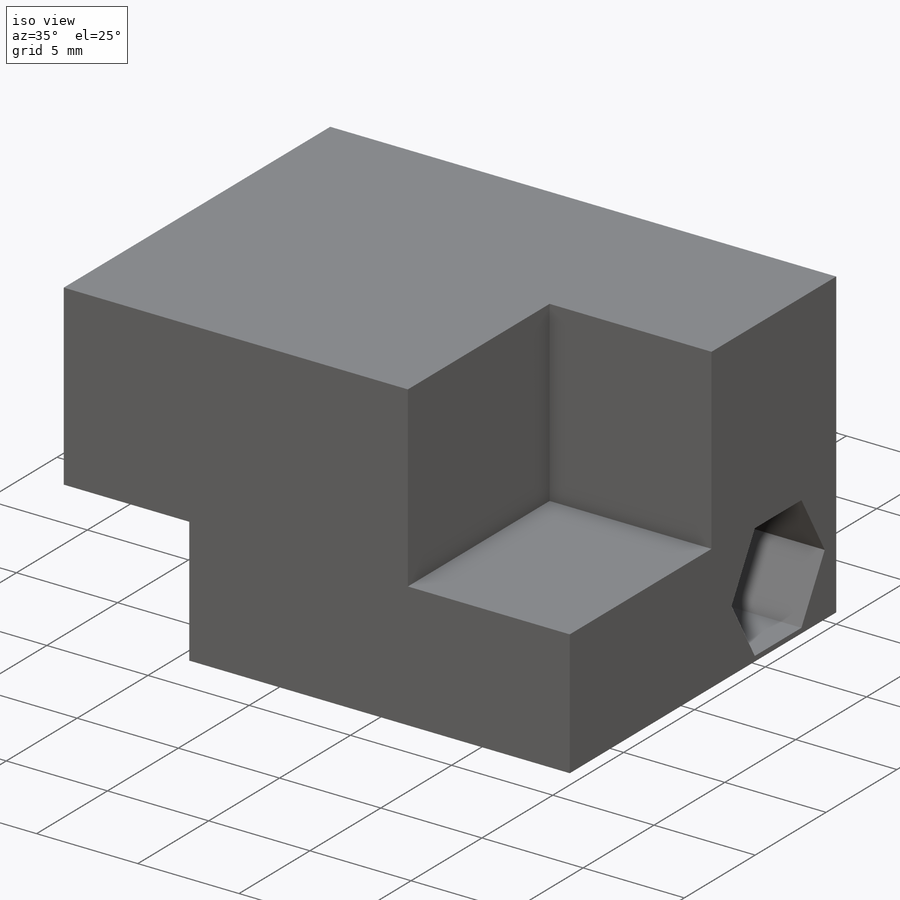
[diagram: iso view]
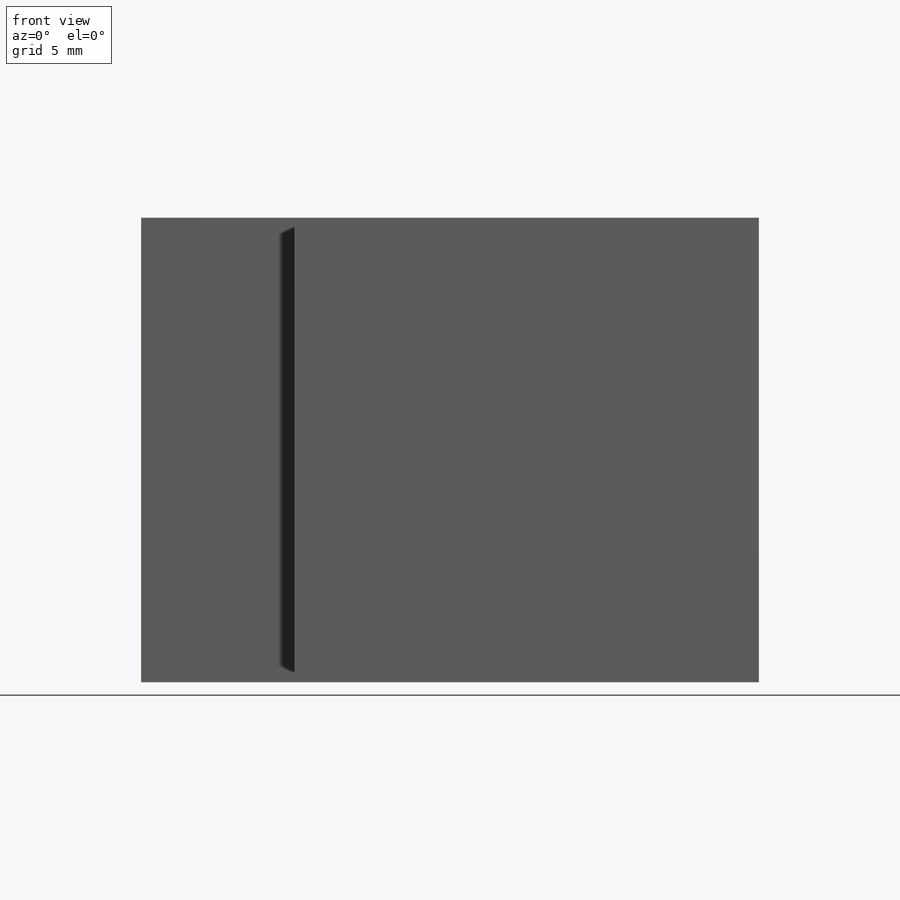
[diagram: front view]
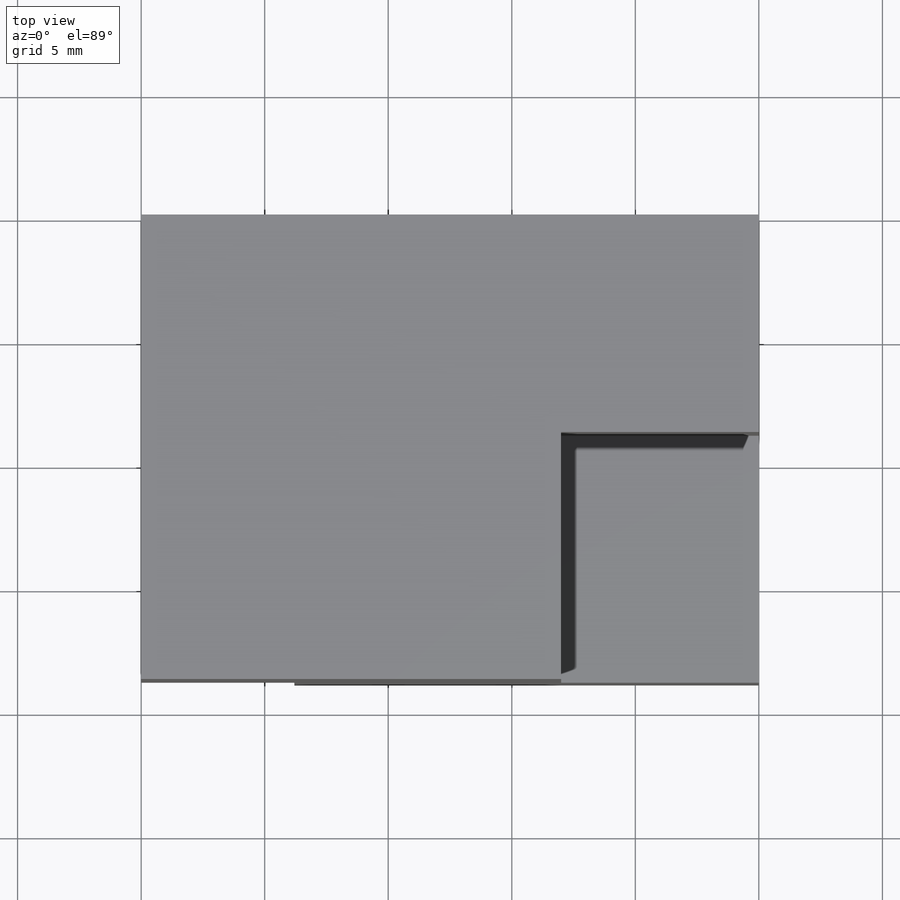
[diagram: top view]
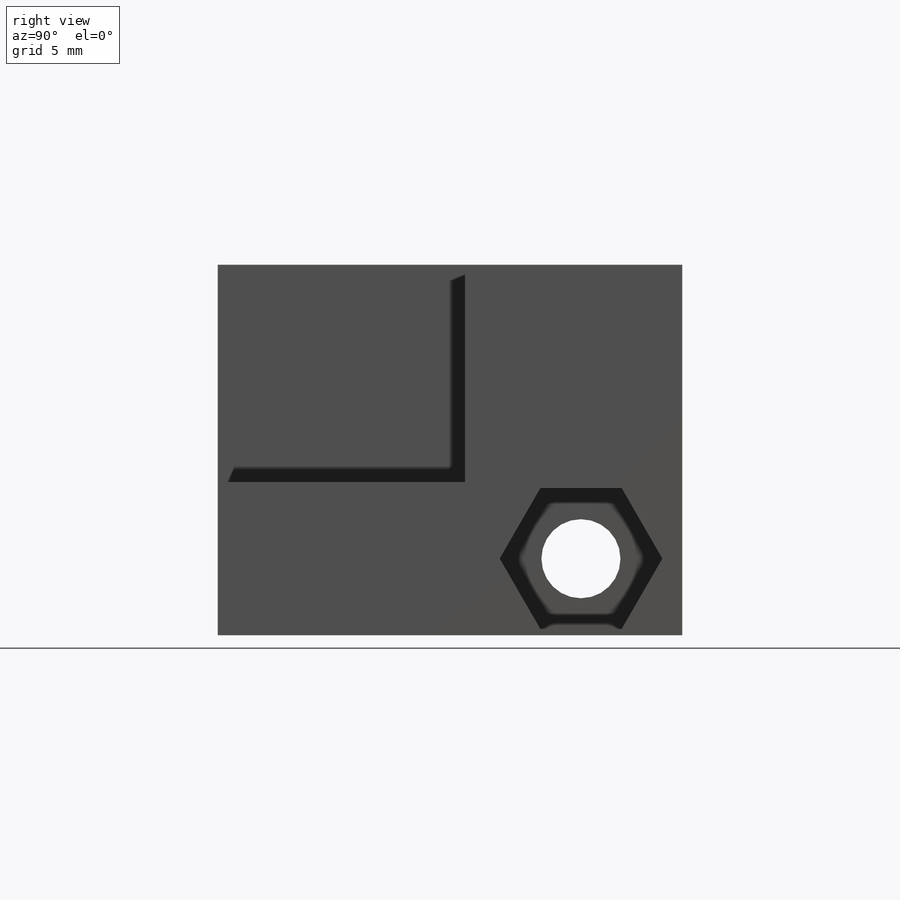
[diagram: right view]
SOLIDWORKS PART (.sldprt)
format: sldprt  version: not decoded by parser v0  size: 330,752 bytes
history: native  units: mm
features: sketch x4, plane x3, extrude x2, cut_extrude x2, material x1 (+13 scaffold rows collapsed)
feature tree (25):
  scaffold x13  (default folders/planes/origin — collapsed)
  material  "Material <sin especificar>"
  plane  "Alzado"
  plane  "Planta"
  plane  "Vista lateral"
  sketch  "Croquis1"  dims[c1.D1=15.0mm c1.D2=15.0mm c1.D3=6.2mm c2.D2=25.0mm]
  extrude  "Saliente-Extruir1"  Depth=8.8mm
  sketch  "Croquis2"  dims[D2=10.8mm D1=0.0mm]
  extrude  "Saliente-Extruir2"  Depth=10mm
  sketch  "Croquis3"  dims[D2=3.2mm D1=4.7mm]
  cut_extrude  "Cortar-Extruir1"  [1 undecoded]
  sketch  "Croquis4"  dims[D1=5.7mm]
  cut_extrude  "Cortar-Extruir2"  Depth=7mm
decode coverage: 7 of 8 modeling features carry decoded parameters
note: 1 parameter value undecoded
note: suppression state not decoded; provenance and decode notes live in map.json
